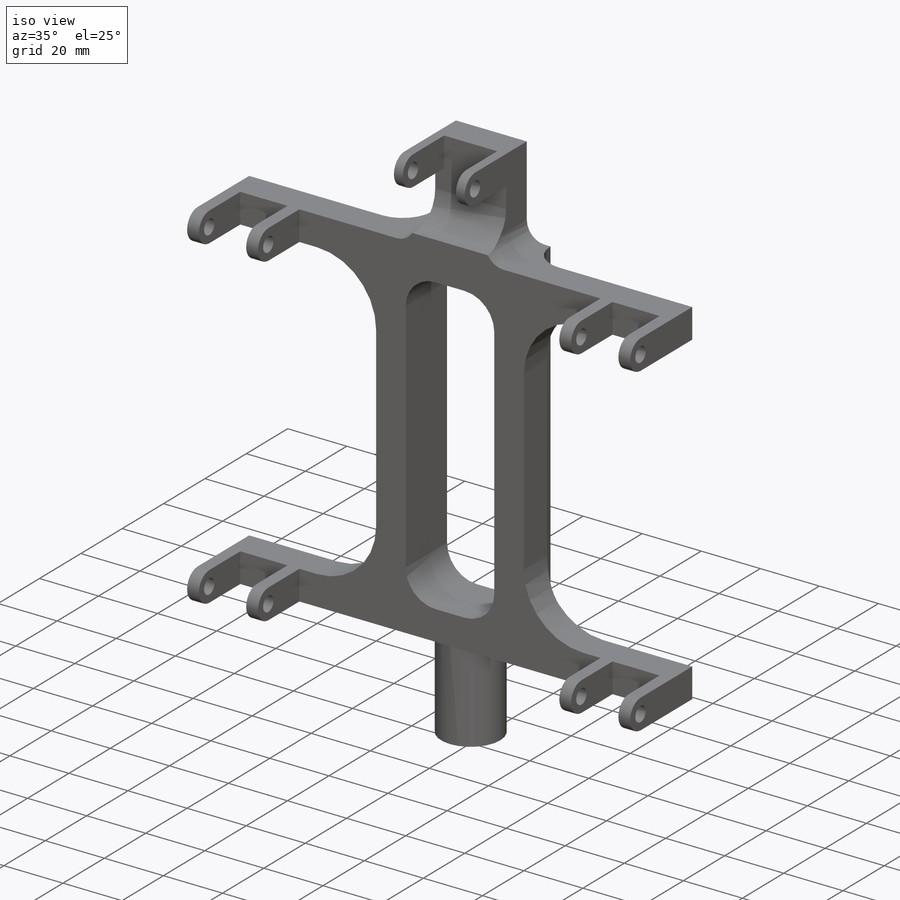
[diagram: iso view]
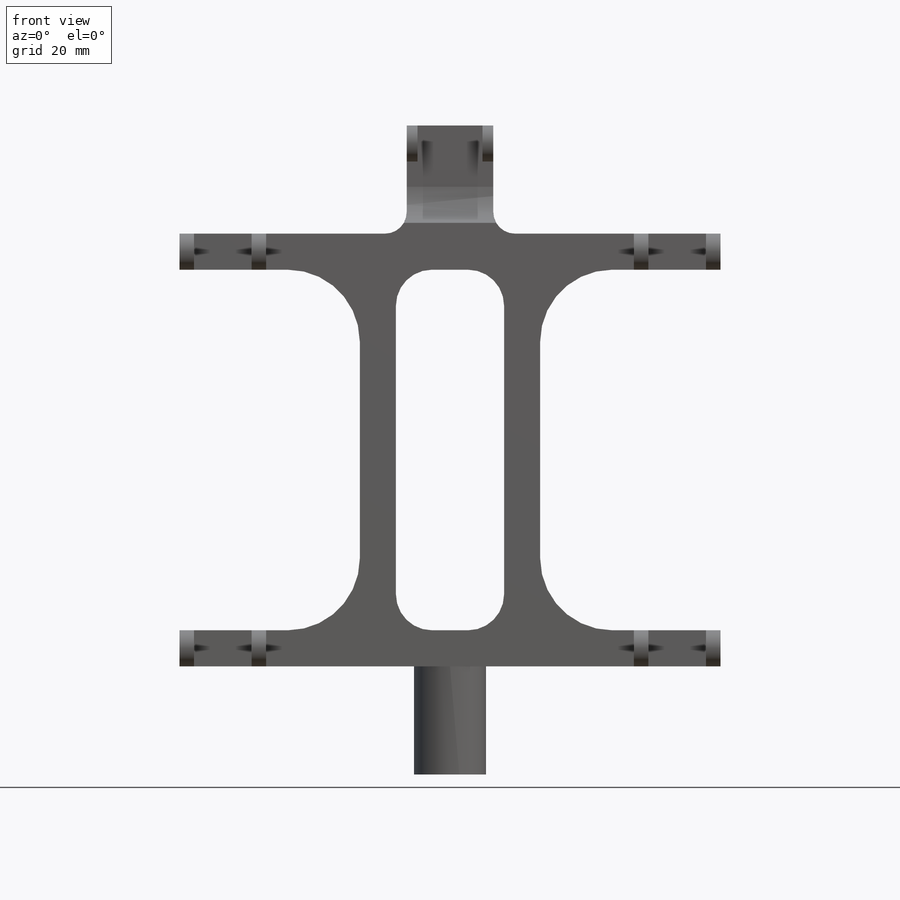
[diagram: front view]
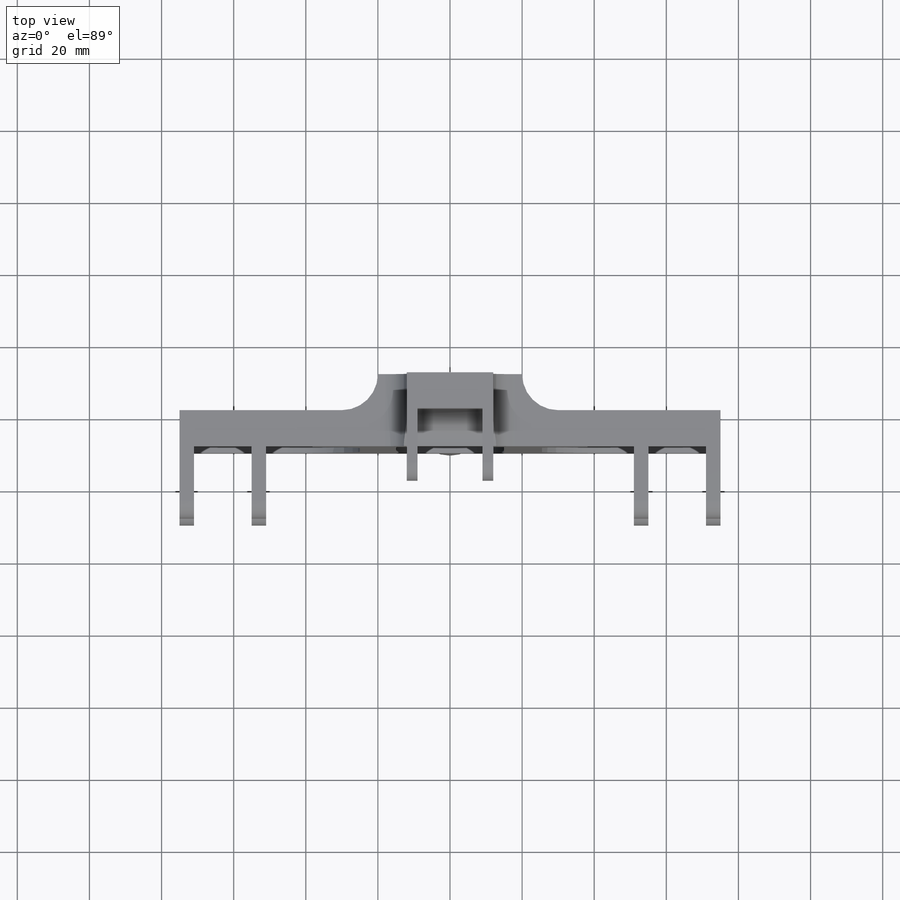
[diagram: top view]
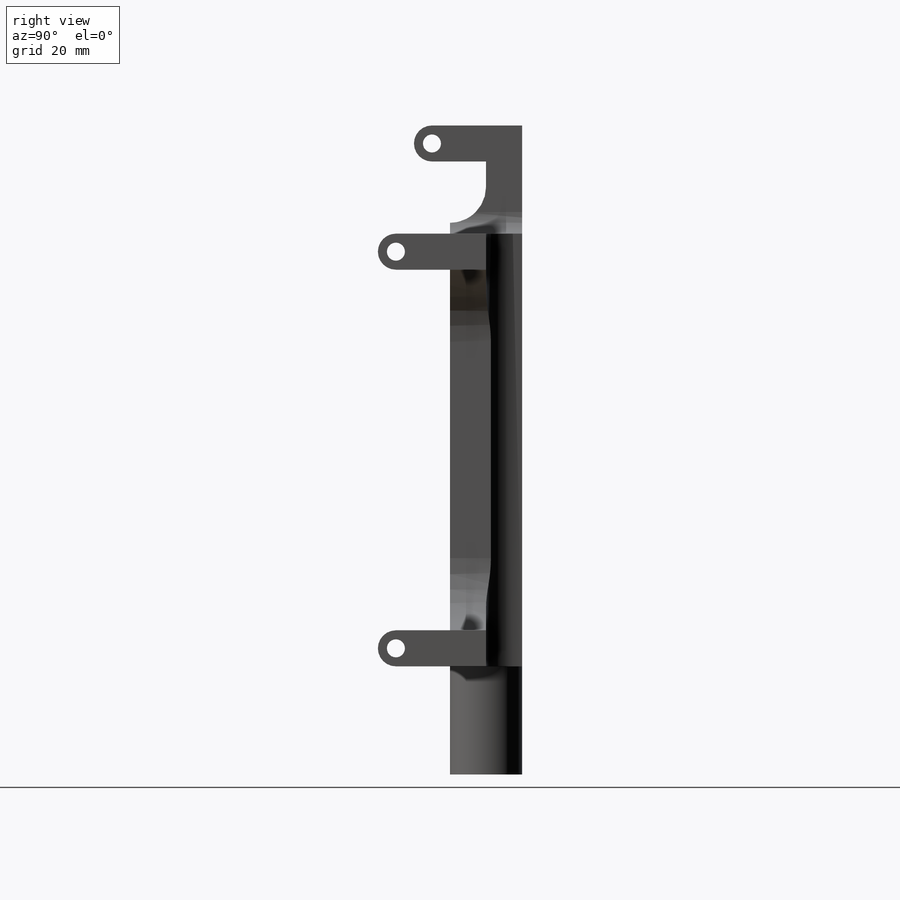
[diagram: right view]
SOLIDWORKS PART (.sldprt)
format: sldprt  version: not decoded by parser v0  size: 400,896 bytes
history: native  units: mm
features: sketch x8, extrude x5, mirror x3, cut_extrude x3, material x1, pattern_linear x1, plane x1 (+11 scaffold rows collapsed)
feature tree (33):
  scaffold x11  (default folders/planes/origin — collapsed)
  material  "Plain Carbon Steel"
  sketch  "Sketch1"  dims[D1=150.0mm D2=20.0mm]
  extrude  "Boss-Extrude1"  Depth=120mm
  extrude  "Boss-Extrude2"  [1 undecoded]
  sketch  "Sketch1<3>"  dims[D1=30.0mm]
  sketch  "Sketch2"  dims[D1=5.0mm D2=5.0mm D3=15.0mm]
  extrude  "Boss-Extrude3"  Depth=4mm
  pattern_linear  "LPattern1"  Count1=2 Count2=1 Spacing1=20mm Spacing2=10mm
  mirror  "Mirror1"
  plane  "Plane1"
  mirror  "Mirror2"
  sketch  "Sketch5"  dims[D1=45.0mm]
  cut_extrude  "Cut-Extrude2"  [1 undecoded]
  sketch  "Sketch6"  dims[D1=0.0mm]
  extrude  "Boss-Extrude4"  Depth=30mm
  sketch  "Sketch3"  dims[D2=20.0mm D5=10.0mm D1=25.0mm D3=100.0mm D4=30.0mm D6=24.0mm D7=12.0mm D8=71.0mm]
  cut_extrude  "Cut-Extrude1"  [1 undecoded]
  sketch  "Sketch7"
  cut_extrude  "Cut-Extrude3"  Depth=30mm
  sketch  "Sketch8"  dims[D1=5.0mm D2=5.0mm D3=15.0mm]
  extrude  "Boss-Extrude5"  Depth=3mm
  mirror  "Mirror5"
decode coverage: 13 of 20 modeling features carry decoded parameters
note: 3 parameter values undecoded
summary: no parameter record found for 3 features
note: suppression state not decoded; provenance and decode notes live in map.json
